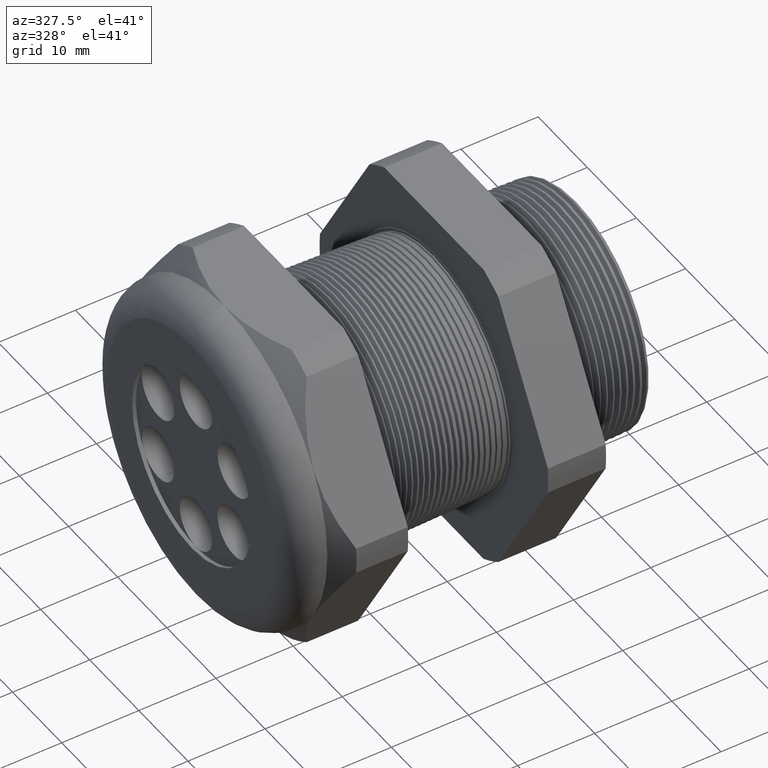
[diagram: clean part render]
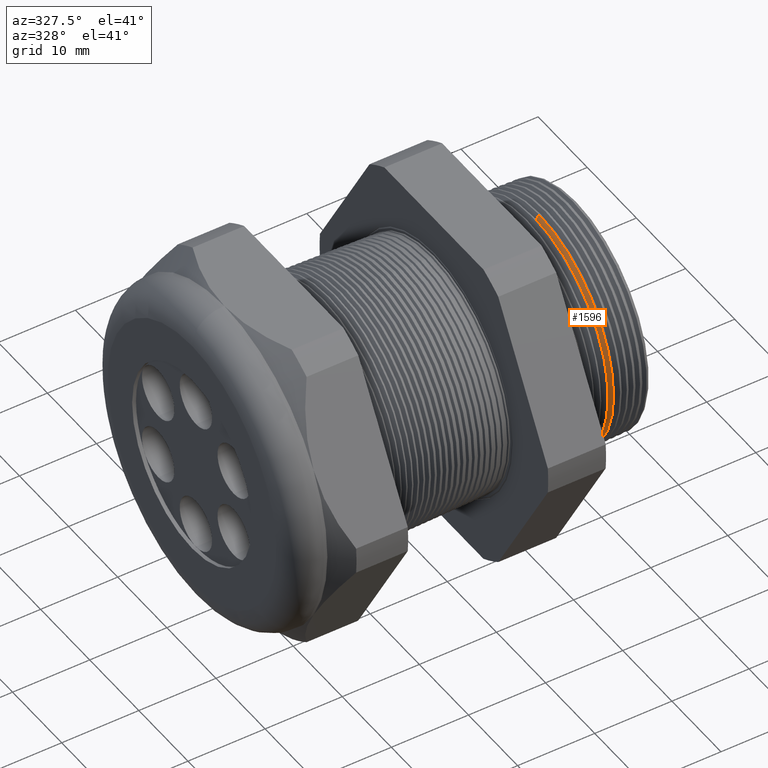
[diagram: same view with one face highlighted and labeled with its STEP entity id]
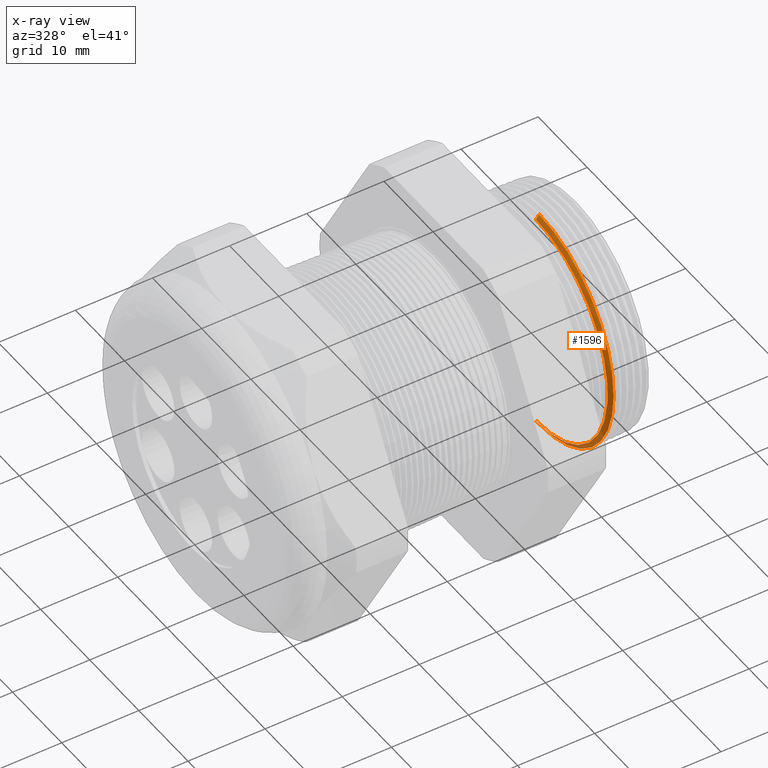
[diagram: x-ray of the same camera — body ghosted, the highlighted face saturated]
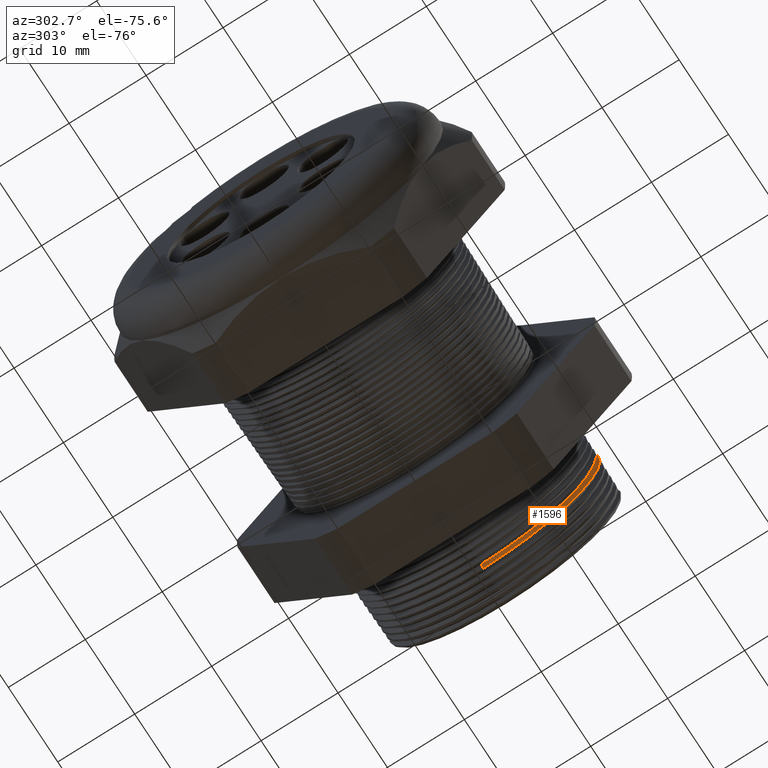
[diagram: same view with one face highlighted and labeled with its STEP entity id]
A machine part, auxiliary view. The second image highlights one B-rep face of the part: STEP entity #1596.
The next image is the same camera in x-ray: the body ghosted, the highlighted face saturated — about 15% of this face is hidden behind the body in this view.
A second angle (auxiliary view) of the same face is appended — the face is thin or edge-on in the first view.
In plain terms, the highlighted conical surface has half-angle 58.5 deg.
Its self-contained STEP definition (entity closure, byte-faithful):
#330 = VERTEX_POINT ( 'NONE', #2728 ) ;
#345 = VERTEX_POINT ( 'NONE', #2768 ) ;
#346 = VERTEX_POINT ( 'NONE', #2767 ) ;
#349 = EDGE_CURVE ( 'NONE', #345, #346, #2766, .T. ) ;
#369 = EDGE_CURVE ( 'NONE', #330, #387, #2775, .T. ) ;
#387 = VERTEX_POINT ( 'NONE', #2807 ) ;
#654 = EDGE_CURVE ( 'NONE', #387, #346, #3370, .T. ) ;
#1593 = EDGE_CURVE ( 'NONE', #345, #330, #4869, .T. ) ;
#1596 = ADVANCED_FACE ( 'NONE', ( #4862 ), #4861, .T. ) ;
#1597 = EDGE_LOOP ( 'NONE', ( #1598, #1599, #1600, #1601 ) ) ;
#1598 = ORIENTED_EDGE ( 'NONE', *, *, #349, .F. ) ;
#1599 = ORIENTED_EDGE ( 'NONE', *, *, #1593, .T. ) ;
#1600 = ORIENTED_EDGE ( 'NONE', *, *, #369, .T. ) ;
#1601 = ORIENTED_EDGE ( 'NONE', *, *, #654, .T. ) ;
#2728 = CARTESIAN_POINT ( 'NONE',  ( -0.08347073567907506400, 7.170714021118400100E-017, -0.5731008538869457600 ) ) ;
#2758 = DIRECTION ( 'NONE',  ( 0.5224985647159360300, 1.044183048100721900E-016, 0.8526401643541001700 ) ) ;
#2759 = VECTOR ( 'NONE', #2758, 39.37007874015748100 ) ;
#2760 = CARTESIAN_POINT ( 'NONE',  ( -0.08347073567907506400, 7.018461263012631300E-017, 0.5731008538869457600 ) ) ;
#2766 = LINE ( 'NONE', #2760, #2759 ) ;
#2767 = CARTESIAN_POINT ( 'NONE',  ( -0.06868745204508981700, 0.0000000000000000000, 0.5972249802263696100 ) ) ;
#2768 = CARTESIAN_POINT ( 'NONE',  ( -0.08347073567907506400, 0.0000000000000000000, 0.5731008538869457600 ) ) ;
#2773 = VECTOR ( 'NONE', #2835, 39.37007874015748100 ) ;
#2774 = CARTESIAN_POINT ( 'NONE',  ( -0.08347073567907506400, 0.0000000000000000000, -0.5731008538869457600 ) ) ;
#2775 = LINE ( 'NONE', #2774, #2773 ) ;
#2807 = CARTESIAN_POINT ( 'NONE',  ( -0.06868745204508981700, 7.313896604050647900E-017, -0.5972249802263696100 ) ) ;
#2835 = DIRECTION ( 'NONE',  ( 0.5224985647159360300, 0.0000000000000000000, -0.8526401643541001700 ) ) ;
#3366 = DIRECTION ( 'NONE',  ( 0.0000000000000000000, 0.0000000000000000000, -1.000000000000000000 ) ) ;
#3367 = DIRECTION ( 'NONE',  ( -1.000000000000000000, 0.0000000000000000000, 0.0000000000000000000 ) ) ;
#3368 = CARTESIAN_POINT ( 'NONE',  ( -0.06868745204508981700, 0.0000000000000000000, 0.0000000000000000000 ) ) ;
#3369 = AXIS2_PLACEMENT_3D ( 'NONE', #3368, #3367, #3366 ) ;
#3370 = CIRCLE ( 'NONE', #3369, 0.5972249802263697200 ) ;
#4856 = DIRECTION ( 'NONE',  ( 0.0000000000000000000, 0.0000000000000000000, -1.000000000000000000 ) ) ;
#4857 = DIRECTION ( 'NONE',  ( 1.000000000000000000, 0.0000000000000000000, 0.0000000000000000000 ) ) ;
#4858 = CARTESIAN_POINT ( 'NONE',  ( -0.08347073567907506400, 0.0000000000000000000, 0.0000000000000000000 ) ) ;
#4859 = AXIS2_PLACEMENT_3D ( 'NONE', #4858, #4857, #4856 ) ;
#4861 = CONICAL_SURFACE ( 'NONE', #4859, 0.5731008538869457600, 1.021017612416697900 ) ;
#4862 = FACE_OUTER_BOUND ( 'NONE', #1597, .T. ) ;
#4863 = DIRECTION ( 'NONE',  ( 0.0000000000000000000, 0.0000000000000000000, -1.000000000000000000 ) ) ;
#4864 = DIRECTION ( 'NONE',  ( 1.000000000000000000, 0.0000000000000000000, 0.0000000000000000000 ) ) ;
#4865 = CARTESIAN_POINT ( 'NONE',  ( -0.08347073567907506400, 0.0000000000000000000, 0.0000000000000000000 ) ) ;
#4866 = AXIS2_PLACEMENT_3D ( 'NONE', #4865, #4864, #4863 ) ;
#4869 = CIRCLE ( 'NONE', #4866, 0.5731008538869457600 ) ;